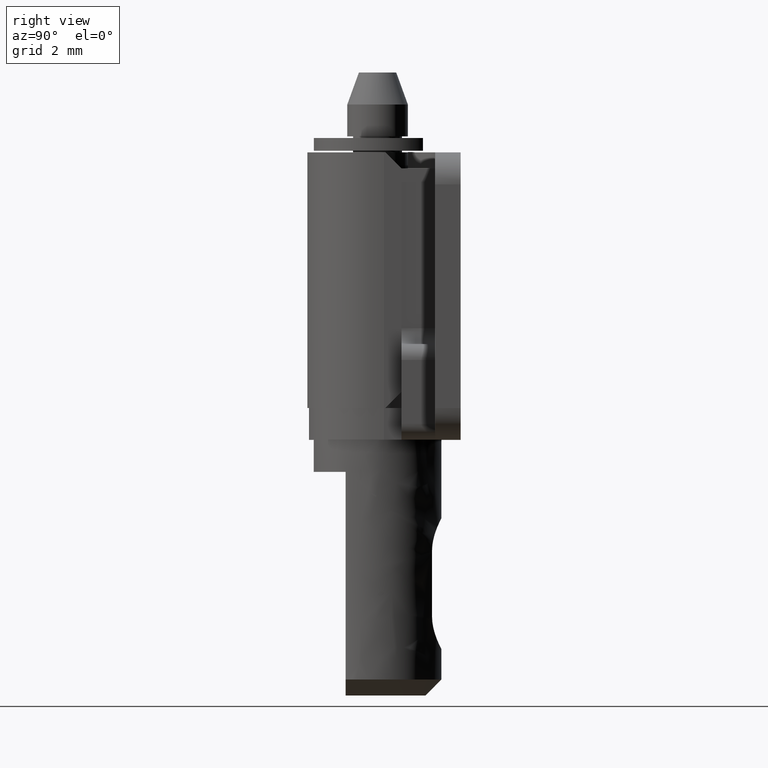
[diagram: clean part render]
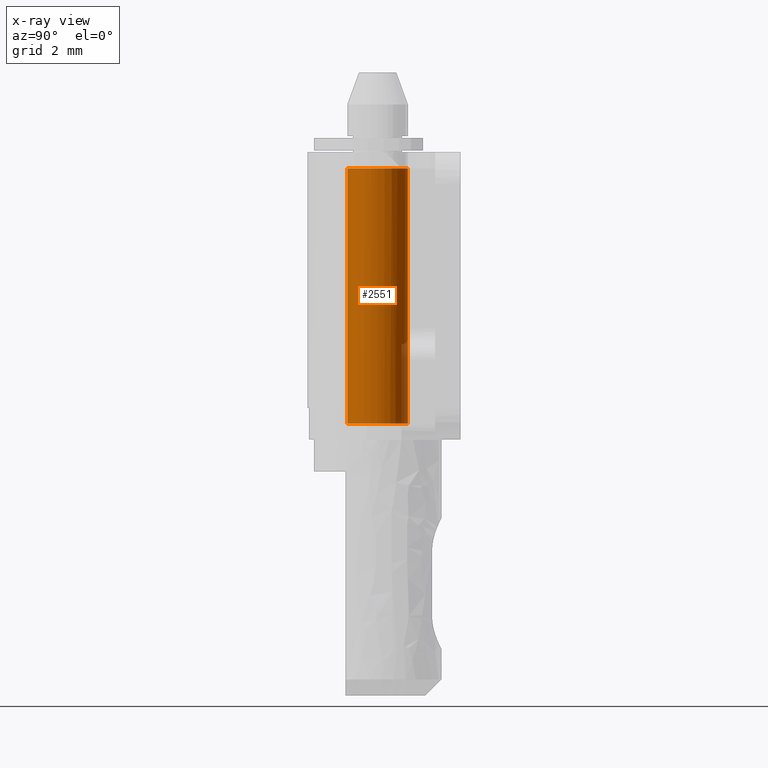
[diagram: x-ray — body ghosted, one internal face saturated and labeled with its STEP entity id]
A machine part, right view, then the same camera in x-ray: the body is ghosted and one INTERNAL B-rep face — a face not visible from any outside direction — is saturated and labeled: STEP entity #2551.
In plain terms, the highlighted face is a freeform B-spline surface patch.
Its self-contained STEP definition (entity closure, byte-faithful):
#2292=CARTESIAN_POINT('',(0.004145256348258,0.949981244338453,8.499982581909126));
#2293=VERTEX_POINT('',#2292);
#2314=CARTESIAN_POINT('',(-0.004145256348258,-0.949981244338453,8.499982581909126));
#2315=VERTEX_POINT('',#2314);
#2377=CARTESIAN_POINT('',(0.950000000000000,0.0,8.500000000000000));
#2378=VERTEX_POINT('',#2377);
#2379=CARTESIAN_POINT('',(0.950000000000000,0.0,8.500000000000000));
#2380=CARTESIAN_POINT('',(0.943782267438029,-0.941754358727424,8.499991290954563));
#2381=CARTESIAN_POINT('',(-0.004145256348258,-0.949981244338453,8.499982581909126));
#2389=(BOUNDED_CURVE()B_SPLINE_CURVE(2,(#2379,#2380,#2381),.UNSPECIFIED.,.F.,.U.)B_SPLINE_CURVE_WITH_KNOTS((3,3),(0.500000000000000,0.748460105655329),.UNSPECIFIED.)CURVE()GEOMETRIC_REPRESENTATION_ITEM()RATIONAL_B_SPLINE_CURVE((1.0,0.708910879631521,0.996414028077994))REPRESENTATION_ITEM(''));
#2390=EDGE_CURVE('',#2378,#2315,#2389,.T.);
#2392=CARTESIAN_POINT('',(0.004145256348258,0.949981244338453,8.499982581909126));
#2393=CARTESIAN_POINT('',(0.949999978811496,0.945858850053306,8.499991290954563));
#2394=CARTESIAN_POINT('',(0.950000000000000,0.0,8.500000000000000));
#2402=(BOUNDED_CURVE()B_SPLINE_CURVE(2,(#2392,#2393,#2394),.UNSPECIFIED.,.F.,.U.)B_SPLINE_CURVE_WITH_KNOTS((3,3),(0.250770667433288,0.500000000000000),.UNSPECIFIED.)CURVE()GEOMETRIC_REPRESENTATION_ITEM()RATIONAL_B_SPLINE_CURVE((0.998199780520857,0.708009674247229,1.0))REPRESENTATION_ITEM(''));
#2403=EDGE_CURVE('',#2293,#2378,#2402,.T.);
#2445=CARTESIAN_POINT('',(-0.008290208779606,0.949963826910473,16.500000000000000));
#2446=VERTEX_POINT('',#2445);
#2447=CARTESIAN_POINT('',(0.004145256348258,0.949981244338453,8.499982581909126));
#2448=CARTESIAN_POINT('',(-0.008290208779606,0.949963826910473,16.500000000000000));
#2449=QUASI_UNIFORM_CURVE('',1,(#2447,#2448),.UNSPECIFIED.,.F.,.U.);
#2450=EDGE_CURVE('',#2293,#2446,#2449,.T.);
#2467=CARTESIAN_POINT('',(0.008290208779606,-0.949963826910473,16.500000000000000));
#2468=VERTEX_POINT('',#2467);
#2484=CARTESIAN_POINT('',(-0.004145256348258,-0.949981244338453,8.499982581909126));
#2485=CARTESIAN_POINT('',(0.008290208779606,-0.949963826910473,16.500000000000000));
#2486=QUASI_UNIFORM_CURVE('',1,(#2484,#2485),.UNSPECIFIED.,.F.,.U.);
#2487=EDGE_CURVE('',#2315,#2468,#2486,.T.);
#2493=CARTESIAN_POINT('',(-0.017351227485635,-0.950187596334724,8.299999999999995));
#2494=CARTESIAN_POINT('',(-0.004602583039277,-0.950076340600130,8.299999999999999));
#2495=CARTESIAN_POINT('',(0.958254035634418,-0.941673618187507,8.299999999999997));
#2496=CARTESIAN_POINT('',(0.949963826910962,0.008290208723455,8.299999999999997));
#2497=CARTESIAN_POINT('',(0.941673618187507,0.958254035634418,8.299999999999997));
#2498=CARTESIAN_POINT('',(-0.015018755404942,0.949905107773649,8.299999999999997));
#2499=CARTESIAN_POINT('',(-0.021707936430671,0.949846732175209,8.299999999999999));
#2500=CARTESIAN_POINT('',(-0.017351227485635,-0.950187596334724,16.704999999999995));
#2501=CARTESIAN_POINT('',(-0.004602583039277,-0.950076340600130,16.705000000000009));
#2502=CARTESIAN_POINT('',(0.958254035634418,-0.941673618187507,16.705000000000002));
#2503=CARTESIAN_POINT('',(0.949963826910962,0.008290208723455,16.705000000000009));
#2504=CARTESIAN_POINT('',(0.941673618187507,0.958254035634418,16.705000000000002));
#2505=CARTESIAN_POINT('',(-0.015018755404942,0.949905107773649,16.705000000000002));
#2506=CARTESIAN_POINT('',(-0.021707936430671,0.949846732175209,16.705000000000005));
#2514=(BOUNDED_SURFACE()B_SPLINE_SURFACE(2,1,((#2493,#2500),(#2494,#2501),(#2495,#2502),(#2496,#2503),(#2497,#2504),(#2498,#2505),(#2499,#2506)),.UNSPECIFIED.,.F.,.F.,.U.)B_SPLINE_SURFACE_WITH_KNOTS((3,1,2,1,3),(2,2),(0.0,0.030381635651067,1.604393172668828,3.178404709686590,3.194217668507364),(0.0,8.405000000000008),.UNSPECIFIED.)GEOMETRIC_REPRESENTATION_ITEM()RATIONAL_B_SPLINE_SURFACE(((1.011306873996005,1.011306873996005),(1.005653436998002,1.005653436998002),(0.707106781186548,0.707106781186548),(1.0,1.0),(0.707106781186548,0.707106781186548),(1.002942486950735,1.002942486950735),(1.005884973901470,1.005884973901470)))REPRESENTATION_ITEM('')SURFACE());
#2515=ORIENTED_EDGE('',*,*,#2403,.T.);
#2516=ORIENTED_EDGE('',*,*,#2390,.T.);
#2517=ORIENTED_EDGE('',*,*,#2487,.T.);
#2518=CARTESIAN_POINT('',(0.950000000000000,0.0,16.500000000000000));
#2519=VERTEX_POINT('',#2518);
#2520=CARTESIAN_POINT('',(0.008290208779606,-0.949963826910473,16.500000000000004));
#2521=CARTESIAN_POINT('',(0.950000000000000,-0.941745650009562,16.499999999999989));
#2522=CARTESIAN_POINT('',(0.950000000000000,0.0,16.500000000000000));
#2530=(BOUNDED_CURVE()B_SPLINE_CURVE(2,(#2520,#2521,#2522),.UNSPECIFIED.,.F.,.U.)B_SPLINE_CURVE_WITH_KNOTS((3,3),(0.751539894345399,1.0),.UNSPECIFIED.)CURVE()GEOMETRIC_REPRESENTATION_ITEM()RATIONAL_B_SPLINE_CURVE((0.996414028076311,0.708910879632373,1.0))REPRESENTATION_ITEM(''));
#2531=EDGE_CURVE('',#2468,#2519,#2530,.T.);
#2532=ORIENTED_EDGE('',*,*,#2531,.T.);
#2533=CARTESIAN_POINT('',(0.950000000000000,0.0,16.500000000000000));
#2534=CARTESIAN_POINT('',(0.950000000000000,0.950000000000000,16.499999999999996));
#2535=CARTESIAN_POINT('',(0.0,0.950000000000000,16.500000000000000));
#2536=CARTESIAN_POINT('',(-0.004145183307744,0.950000000000000,16.499999999999996));
#2537=CARTESIAN_POINT('',(-0.008290208779606,0.949963826910473,16.499999999999993));
#2545=(BOUNDED_CURVE()B_SPLINE_CURVE(2,(#2533,#2534,#2535,#2536,#2537),.UNSPECIFIED.,.F.,.U.)B_SPLINE_CURVE_WITH_KNOTS((3,2,3),(0.0,0.250000000000000,0.251539894345399),.UNSPECIFIED.)CURVE()GEOMETRIC_REPRESENTATION_ITEM()RATIONAL_B_SPLINE_CURVE((1.0,0.707106781186547,1.0,0.998195901554174,0.996414028076311))REPRESENTATION_ITEM(''));
#2546=EDGE_CURVE('',#2519,#2446,#2545,.T.);
#2547=ORIENTED_EDGE('',*,*,#2546,.T.);
#2548=ORIENTED_EDGE('',*,*,#2450,.F.);
#2549=EDGE_LOOP('',(#2515,#2516,#2517,#2532,#2547,#2548));
#2550=FACE_OUTER_BOUND('',#2549,.T.);
#2551=ADVANCED_FACE('',(#2550),#2514,.F.);